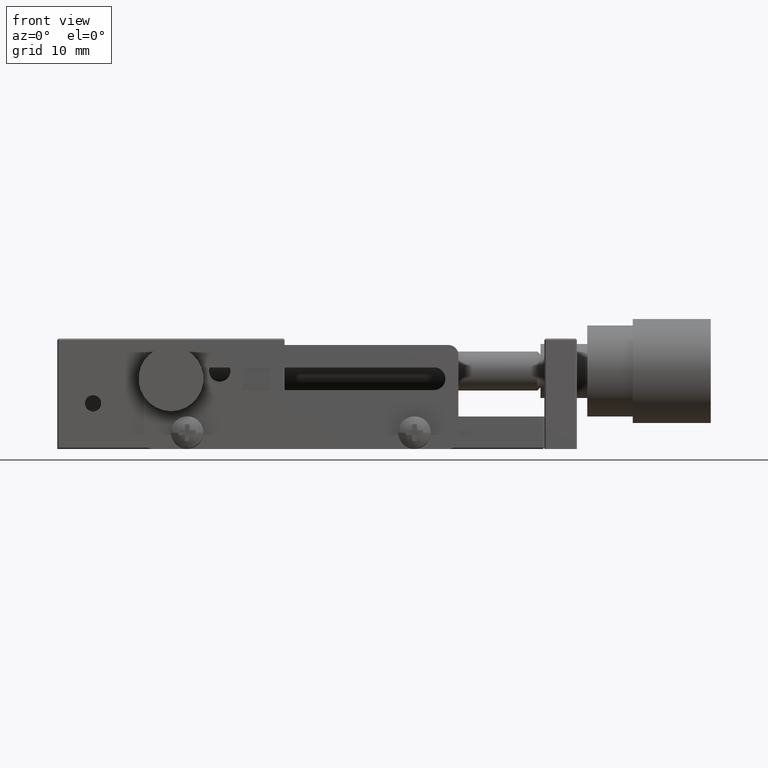
[diagram: clean part render]
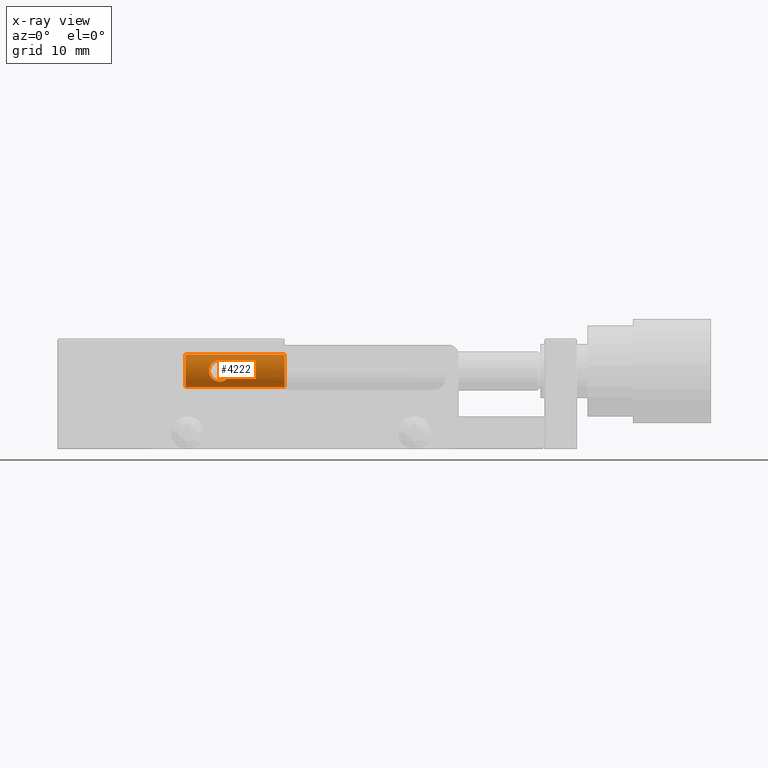
[diagram: x-ray — body ghosted, one internal face saturated and labeled with its STEP entity id]
A machine part, front view, then the same camera in x-ray: the body is ghosted and one INTERNAL B-rep face — a face not visible from any outside direction — is saturated and labeled: STEP entity #4222.
In plain terms, the highlighted cylindrical surface (edge-blend (fillet) strip) has radius 2.5 mm, axis along (1, 0, 0).
Its self-contained STEP definition (entity closure, byte-faithful):
#147 = CARTESIAN_POINT ( 'NONE',  ( -10.85030623880281000, -2.499797882793684400, 11.88321741609951400 ) ) ;
#224 = EDGE_CURVE ( 'NONE', #10652, #2478, #3670, .T. ) ;
#274 = ORIENTED_EDGE ( 'NONE', *, *, #394, .T. ) ;
#394 = EDGE_CURVE ( 'NONE', #9846, #3551, #5644, .T. ) ;
#485 = CARTESIAN_POINT ( 'NONE',  ( -13.51471568888414900, -2.131027684750791200, 13.31775174791128800 ) ) ;
#489 = CARTESIAN_POINT ( 'NONE',  ( -2.500000000000000400, 0.0000000000000000000, 9.500000000000000000 ) ) ;
#530 = FACE_BOUND ( 'NONE', #3871, .T. ) ;
#612 = CARTESIAN_POINT ( 'NONE',  ( -17.75000000000000400, 0.0000000000000000000, 9.500000000000000000 ) ) ;
#761 = CARTESIAN_POINT ( 'NONE',  ( -13.24283572850911700, -2.017583894279320900, 10.52280086040546800 ) ) ;
#823 = CARTESIAN_POINT ( 'NONE',  ( -12.50000000000000000, -1.878163997099296500, 10.35000000000000100 ) ) ;
#836 = EDGE_LOOP ( 'NONE', ( #4010, #4940, #274, #10505 ) ) ;
#1248 = CARTESIAN_POINT ( 'NONE',  ( -12.27450786781162200, -1.878163997024175900, 13.65000000029037100 ) ) ;
#1252 = DIRECTION ( 'NONE',  ( 1.000000000000000000, -0.0000000000000000000, -0.0000000000000000000 ) ) ;
#1277 = CARTESIAN_POINT ( 'NONE',  ( -13.59055405313158000, -2.170908738836810200, 10.75737079821345600 ) ) ;
#1334 = CARTESIAN_POINT ( 'NONE',  ( -13.50868012289737900, -2.130458893750615300, 10.69002548504637900 ) ) ;
#1512 = VERTEX_POINT ( 'NONE', #1900 ) ;
#1666 = VERTEX_POINT ( 'NONE', #4319 ) ;
#1767 = CARTESIAN_POINT ( 'NONE',  ( -12.50000000000000000, -1.878163997099296500, 13.64999999999999900 ) ) ;
#1900 = CARTESIAN_POINT ( 'NONE',  ( -17.74999999999993200, 0.0000000000000000000, 9.500000000000000000 ) ) ;
#2094 = CARTESIAN_POINT ( 'NONE',  ( -12.94767833445394900, -1.921789607309287500, 10.39757278507428900 ) ) ;
#2164 = CARTESIAN_POINT ( 'NONE',  ( -14.05980269642369900, -2.441187364364760400, 12.54879662996776600 ) ) ;
#2178 = EDGE_CURVE ( 'NONE', #2478, #10652, #10123, .T. ) ;
#2192 = EDGE_CURVE ( 'NONE', #1512, #3551, #2294, .T. ) ;
#2294 = LINE ( 'NONE', #612, #8928 ) ;
#2334 = EDGE_CURVE ( 'NONE', #1666, #1512, #5093, .T. ) ;
#2378 = CARTESIAN_POINT ( 'NONE',  ( -14.15059479711782900, -2.500392565302458300, 11.77966496829392700 ) ) ;
#2436 = CARTESIAN_POINT ( 'NONE',  ( -13.04325654772821400, -1.952933036712434900, 13.56166365590848400 ) ) ;
#2478 = VERTEX_POINT ( 'NONE', #5400 ) ;
#2979 = CARTESIAN_POINT ( 'NONE',  ( -14.13804443272127600, -2.492068238966708800, 12.22672277466465800 ) ) ;
#3011 = CARTESIAN_POINT ( 'NONE',  ( -14.09347003280846500, -2.462998434744951800, 12.44209278965189500 ) ) ;
#3130 = AXIS2_PLACEMENT_3D ( 'NONE', #6184, #6150, #5637 ) ;
#3190 = AXIS2_PLACEMENT_3D ( 'NONE', #8217, #3854, #4735 ) ;
#3357 = ORIENTED_EDGE ( 'NONE', *, *, #224, .T. ) ;
#3361 = DIRECTION ( 'NONE',  ( 1.000000000000000000, 0.0000000000000000000, 0.0000000000000000000 ) ) ;
#3380 = CARTESIAN_POINT ( 'NONE',  ( -13.80517125840630400, -2.286627756989452600, 13.01497360106768400 ) ) ;
#3471 = CARTESIAN_POINT ( 'NONE',  ( -12.50000000000000000, -1.878163997099296500, 10.35000000000000100 ) ) ;
#3551 = VERTEX_POINT ( 'NONE', #489 ) ;
#3670 = B_SPLINE_CURVE_WITH_KNOTS ( 'NONE', 3,
 ( #6020, #6062, #6381, #4750, #7684, #5470, #10927, #10025, #5027, #7009, #10244, #10556, #10521, #7336, #147, #5942, #10475, #10328, #5955, #10157, #10233, #10920, #10547, #6037, #1248, #5801 ),
 .UNSPECIFIED., .F., .F.,
 ( 4, 2, 2, 2, 2, 2, 2, 2, 2, 2, 2, 2, 4 ),
 ( 0.005324674182421685100, 0.005656832764861214000, 0.005988991347300743700, 0.006653308512179802200, 0.006985467094619331900, 0.007317625677058860700, 0.007649784259498390400, 0.007981942841937919200, 0.008646260006816978600, 0.009310577171696038000, 0.009642735754135566000, 0.009974894336575095700, 0.01063921150145415700 ),
 .UNSPECIFIED. ) ;
#3730 = VECTOR ( 'NONE', #3361, 1000.000000000000000 ) ;
#3854 = DIRECTION ( 'NONE',  ( 1.000000000000000000, 0.0000000000000000000, 0.0000000000000000000 ) ) ;
#3858 = DIRECTION ( 'NONE',  ( 1.000000000000000000, 0.0000000000000000000, 0.0000000000000000000 ) ) ;
#3871 = EDGE_LOOP ( 'NONE', ( #3357, #7814 ) ) ;
#4010 = ORIENTED_EDGE ( 'NONE', *, *, #2334, .F. ) ;
#4108 = CARTESIAN_POINT ( 'NONE',  ( -13.81278420876642700, -2.288022905700842100, 10.97880485461836200 ) ) ;
#4222 = ADVANCED_FACE ( 'NONE', ( #530, #9378 ), #6802, .F. ) ;
#4319 = CARTESIAN_POINT ( 'NONE',  ( -17.74999999999993200, 3.061616997868383600E-016, 14.50000000000000000 ) ) ;
#4735 = DIRECTION ( 'NONE',  ( 0.0000000000000000000, 0.0000000000000000000, -1.000000000000000000 ) ) ;
#4740 = CARTESIAN_POINT ( 'NONE',  ( -14.10412312179550700, -2.469086493873502000, 11.55684601191088000 ) ) ;
#4750 = CARTESIAN_POINT ( 'NONE',  ( -12.06217172292003200, -1.925616548144399000, 10.40537483188128400 ) ) ;
#4763 = CARTESIAN_POINT ( 'NONE',  ( -2.500000000000000400, 3.061616997868383600E-016, 14.50000000000000000 ) ) ;
#4783 = AXIS2_PLACEMENT_3D ( 'NONE', #6337, #1252, #7239 ) ;
#4940 = ORIENTED_EDGE ( 'NONE', *, *, #10545, .T. ) ;
#5027 = CARTESIAN_POINT ( 'NONE',  ( -11.19482874187127000, -2.286627756830308800, 10.98502639857248500 ) ) ;
#5093 = CIRCLE ( 'NONE', #4783, 2.500000000000000400 ) ;
#5400 = CARTESIAN_POINT ( 'NONE',  ( -12.50000000000000000, -1.878163997099296500, 13.64999999999999900 ) ) ;
#5470 = CARTESIAN_POINT ( 'NONE',  ( -11.66137601355502800, -2.048430928178647500, 10.56302609183705800 ) ) ;
#5515 = CARTESIAN_POINT ( 'NONE',  ( -14.14969376119821500, -2.499797882794361700, 12.11678258380862500 ) ) ;
#5637 = DIRECTION ( 'NONE',  ( 0.0000000000000000000, 0.0000000000000000000, -1.000000000000000000 ) ) ;
#5644 = CIRCLE ( 'NONE', #3130, 2.500000000000000400 ) ;
#5801 = CARTESIAN_POINT ( 'NONE',  ( -12.50000000000000000, -1.878163997099296500, 13.64999999999999900 ) ) ;
#5942 = CARTESIAN_POINT ( 'NONE',  ( -10.84940520288021800, -2.500392565303752000, 12.22033503185544700 ) ) ;
#5955 = CARTESIAN_POINT ( 'NONE',  ( -11.18721579146457200, -2.288022905562304500, 13.02119514569947800 ) ) ;
#5988 = LINE ( 'NONE', #9389, #3730 ) ;
#6020 = CARTESIAN_POINT ( 'NONE',  ( -12.50000000000000000, -1.878163997099296500, 10.35000000000000100 ) ) ;
#6037 = CARTESIAN_POINT ( 'NONE',  ( -12.05232166644386500, -1.921789607081304100, 13.60242721519730800 ) ) ;
#6062 = CARTESIAN_POINT ( 'NONE',  ( -12.38703888380983600, -1.878163997066529800, 10.34999999996203500 ) ) ;
#6150 = DIRECTION ( 'NONE',  ( 1.000000000000000000, 0.0000000000000000000, 0.0000000000000000000 ) ) ;
#6184 = CARTESIAN_POINT ( 'NONE',  ( -2.500000000000000400, 0.0000000000000000000, 12.00000000000000000 ) ) ;
#6218 = CARTESIAN_POINT ( 'NONE',  ( -12.72297073654399600, -1.888391230557960700, 13.63853809160508500 ) ) ;
#6337 = CARTESIAN_POINT ( 'NONE',  ( -17.74999999999993200, 0.0000000000000000000, 12.00000000000000000 ) ) ;
#6381 = CARTESIAN_POINT ( 'NONE',  ( -12.27702926449574300, -1.888391230430825500, 10.36146190824957200 ) ) ;
#6396 = CARTESIAN_POINT ( 'NONE',  ( -13.33862398707622000, -2.048430928450528200, 13.43697390778000400 ) ) ;
#6454 = CARTESIAN_POINT ( 'NONE',  ( -12.72635315449477000, -1.878163997166713700, 10.35000000007607000 ) ) ;
#6802 = CYLINDRICAL_SURFACE ( 'NONE', #3190, 2.500000000000000400 ) ;
#7009 = CARTESIAN_POINT ( 'NONE',  ( -11.07612855822104900, -2.356396479367415300, 11.15962297632170300 ) ) ;
#7239 = DIRECTION ( 'NONE',  ( -2.775557561562890700E-014, 0.0000000000000000000, 1.000000000000000000 ) ) ;
#7278 = CARTESIAN_POINT ( 'NONE',  ( -13.33495351189097300, -2.053915011545484500, 10.57300264431317800 ) ) ;
#7336 = CARTESIAN_POINT ( 'NONE',  ( -10.86195556729650100, -2.492068238954937800, 11.77327722519285500 ) ) ;
#7684 = CARTESIAN_POINT ( 'NONE',  ( -11.95674345310077200, -1.952933036478304400, 10.43833634379978800 ) ) ;
#7814 = ORIENTED_EDGE ( 'NONE', *, *, #2178, .T. ) ;
#8217 = CARTESIAN_POINT ( 'NONE',  ( -17.75000000000000400, 0.0000000000000000000, 12.00000000000000000 ) ) ;
#8826 = CARTESIAN_POINT ( 'NONE',  ( -12.61296111783957100, -1.878163997228774300, 13.65000000005748000 ) ) ;
#8928 = VECTOR ( 'NONE', #3858, 1000.000000000000000 ) ;
#9378 = FACE_OUTER_BOUND ( 'NONE', #836, .T. ) ;
#9389 = CARTESIAN_POINT ( 'NONE',  ( -17.75000000000000400, 3.061616997868383600E-016, 14.50000000000000000 ) ) ;
#9669 = CARTESIAN_POINT ( 'NONE',  ( -13.73696074975850600, -2.248022389216752800, 13.09696513306239600 ) ) ;
#9846 = VERTEX_POINT ( 'NONE', #4763 ) ;
#10025 = CARTESIAN_POINT ( 'NONE',  ( -11.26303925056838800, -2.248022389035289900, 10.90303486656420200 ) ) ;
#10123 = B_SPLINE_CURVE_WITH_KNOTS ( 'NONE', 3,
 ( #1767, #8826, #6218, #11051, #2436, #6396, #485, #9669, #3380, #10532, #10168, #2164, #3011, #2979, #5515, #2378, #4740, #10711, #4108, #1277, #1334, #7278, #761, #2094, #6454, #823 ),
 .UNSPECIFIED., .F., .F.,
 ( 4, 2, 2, 2, 2, 2, 2, 2, 2, 2, 2, 2, 4 ),
 ( 0.0000000000000000000, 0.0003327921364013548900, 0.0006655842728027097700, 0.001331168545605419500, 0.001663960682006775600, 0.001996752818408132100, 0.002329544954809488200, 0.002662337091210844700, 0.003327921364013552100, 0.003993505636816259900, 0.004326297773217614700, 0.004659089909618970400, 0.005324674182421685100 ),
 .UNSPECIFIED. ) ;
#10157 = CARTESIAN_POINT ( 'NONE',  ( -11.40944594727350900, -2.170908738631731200, 13.24262920214635000 ) ) ;
#10168 = CARTESIAN_POINT ( 'NONE',  ( -13.97496595681246500, -2.387872666186206000, 12.74742064400103700 ) ) ;
#10233 = CARTESIAN_POINT ( 'NONE',  ( -11.49131987757012400, -2.130458893527434700, 13.30997451531596300 ) ) ;
#10244 = CARTESIAN_POINT ( 'NONE',  ( -11.02503404334502000, -2.387872666088461500, 11.25257935567914400 ) ) ;
#10328 = CARTESIAN_POINT ( 'NONE',  ( -11.06502233752183900, -2.362697190956762700, 12.84287339218686200 ) ) ;
#10475 = CARTESIAN_POINT ( 'NONE',  ( -10.89587687824215000, -2.469086493847844700, 12.44315398825884100 ) ) ;
#10505 = ORIENTED_EDGE ( 'NONE', *, *, #2192, .F. ) ;
#10521 = CARTESIAN_POINT ( 'NONE',  ( -10.90652996724354300, -2.462998434711215300, 11.55790721015343800 ) ) ;
#10532 = CARTESIAN_POINT ( 'NONE',  ( -13.92387144198022500, -2.356396479489723600, 12.84037702333379200 ) ) ;
#10545 = EDGE_CURVE ( 'NONE', #1666, #9846, #5988, .T. ) ;
#10547 = CARTESIAN_POINT ( 'NONE',  ( -11.75716427211470700, -2.017583894045153600, 13.47719913991387100 ) ) ;
#10556 = CARTESIAN_POINT ( 'NONE',  ( -10.94019730364931900, -2.441187364317646000, 11.45120336981238100 ) ) ;
#10652 = VERTEX_POINT ( 'NONE', #3471 ) ;
#10711 = CARTESIAN_POINT ( 'NONE',  ( -13.93497766262693600, -2.362697191048367200, 11.15712660808399700 ) ) ;
#10920 = CARTESIAN_POINT ( 'NONE',  ( -11.66504648866958100, -2.053915011315704800, 13.42699735601698500 ) ) ;
#10927 = CARTESIAN_POINT ( 'NONE',  ( -11.48528431162301500, -2.131027684502574600, 10.68224825168221100 ) ) ;
#11051 = CARTESIAN_POINT ( 'NONE',  ( -12.93782827798030500, -1.925616548353392700, 13.59462516786754300 ) ) ;